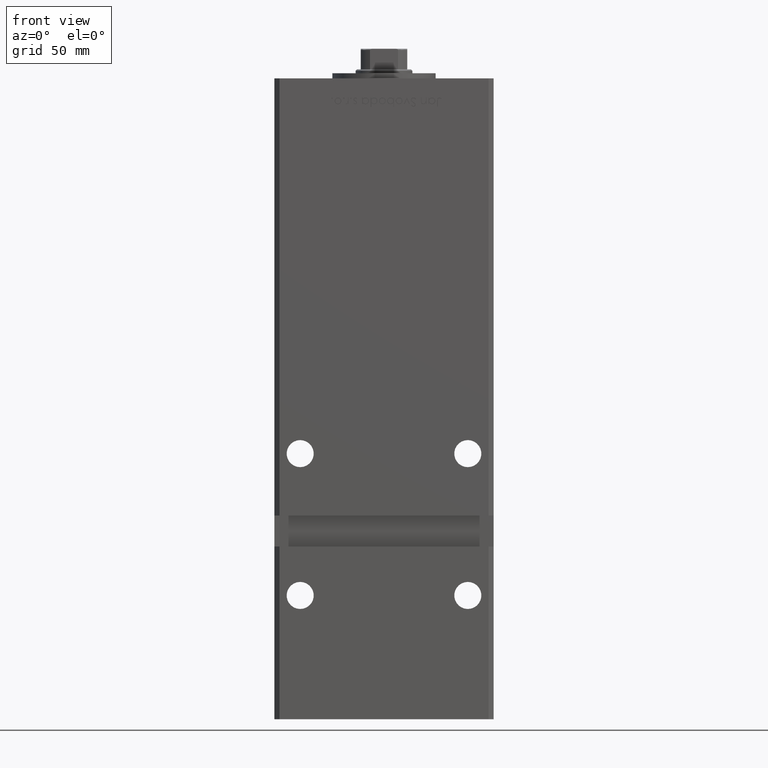
[diagram: clean part render]
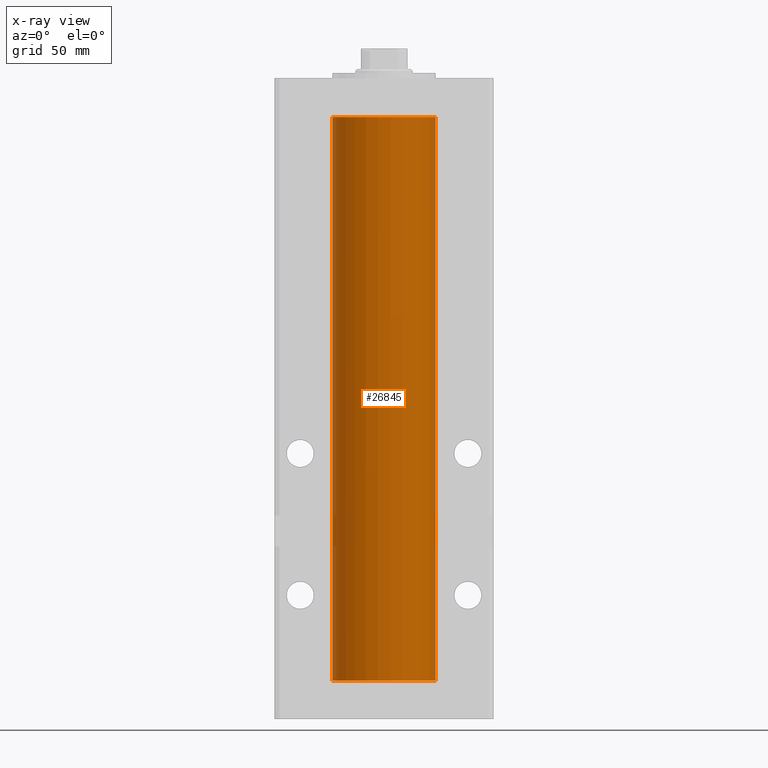
[diagram: x-ray — body ghosted, one internal face saturated and labeled with its STEP entity id]
A machine part, front view, then the same camera in x-ray: the body is ghosted and one INTERNAL B-rep face — a face not visible from any outside direction — is saturated and labeled: STEP entity #26845.
In plain terms, the highlighted cylindrical surface (partial cylindrical patch) has radius 20 mm, axis along (-0, -0, -1).
Its self-contained STEP definition (entity closure, byte-faithful):
#449 = DIRECTION ( 'NONE',  ( 1.000000000000000000, 0.000000000000000000, 0.000000000000000000 ) ) ;
#503 = EDGE_CURVE ( 'NONE', #45879, #2004, #27378, .T. ) ;
#872 = ORIENTED_EDGE ( 'NONE', *, *, #3127, .F. ) ;
#2004 = VERTEX_POINT ( 'NONE', #32864 ) ;
#3127 = EDGE_CURVE ( 'NONE', #2004, #22915, #32633, .T. ) ;
#5123 = CARTESIAN_POINT ( 'NONE',  ( 20.00000000000000000, 2.449293598294706513E-15, 218.5000000000000000 ) ) ;
#6564 = DIRECTION ( 'NONE',  ( -0.000000000000000000, -0.000000000000000000, -1.000000000000000000 ) ) ;
#7278 = EDGE_CURVE ( 'NONE', #45879, #41299, #48225, .T. ) ;
#8701 = FACE_OUTER_BOUND ( 'NONE', #12073, .T. ) ;
#11555 = ORIENTED_EDGE ( 'NONE', *, *, #503, .F. ) ;
#11908 = CARTESIAN_POINT ( 'NONE',  ( 20.00000000000000000, 2.449293598294706513E-15, 218.5000000000000000 ) ) ;
#12039 = DIRECTION ( 'NONE',  ( -0.000000000000000000, -0.000000000000000000, -1.000000000000000000 ) ) ;
#12073 = EDGE_LOOP ( 'NONE', ( #37978, #20402, #872, #11555 ) ) ;
#13063 = DIRECTION ( 'NONE',  ( -0.000000000000000000, 0.000000000000000000, 1.000000000000000000 ) ) ;
#13273 = CARTESIAN_POINT ( 'NONE',  ( 0.000000000000000000, 0.000000000000000000, 218.5000000000000000 ) ) ;
#14124 = DIRECTION ( 'NONE',  ( 1.000000000000000000, 0.000000000000000000, 0.000000000000000000 ) ) ;
#18380 = CARTESIAN_POINT ( 'NONE',  ( -20.00000000000000000, 0.000000000000000000, 218.5000000000000000 ) ) ;
#20402 = ORIENTED_EDGE ( 'NONE', *, *, #38440, .T. ) ;
#22915 = VERTEX_POINT ( 'NONE', #43774 ) ;
#23465 = AXIS2_PLACEMENT_3D ( 'NONE', #13273, #25107, #41523 ) ;
#24363 = CARTESIAN_POINT ( 'NONE',  ( 0.000000000000000000, 0.000000000000000000, 0.000000000000000000 ) ) ;
#25107 = DIRECTION ( 'NONE',  ( -0.000000000000000000, -0.000000000000000000, -1.000000000000000000 ) ) ;
#26845 = ADVANCED_FACE ( 'NONE', ( #8701 ), #45287, .F. ) ;
#27378 = LINE ( 'NONE', #52125, #47162 ) ;
#32289 = VECTOR ( 'NONE', #6564, 1000.000000000000000 ) ;
#32633 = CIRCLE ( 'NONE', #50656, 20.00000000000000000 ) ;
#32864 = CARTESIAN_POINT ( 'NONE',  ( -20.00000000000000000, 0.000000000000000000, 0.000000000000000000 ) ) ;
#37978 = ORIENTED_EDGE ( 'NONE', *, *, #7278, .T. ) ;
#38440 = EDGE_CURVE ( 'NONE', #41299, #22915, #52528, .T. ) ;
#41299 = VERTEX_POINT ( 'NONE', #5123 ) ;
#41523 = DIRECTION ( 'NONE',  ( -1.000000000000000000, 0.000000000000000000, 0.000000000000000000 ) ) ;
#43774 = CARTESIAN_POINT ( 'NONE',  ( 20.00000000000000000, 2.449293598294706513E-15, 0.000000000000000000 ) ) ;
#43968 = AXIS2_PLACEMENT_3D ( 'NONE', #51236, #50972, #14124 ) ;
#45287 = CYLINDRICAL_SURFACE ( 'NONE', #23465, 20.00000000000000000 ) ;
#45879 = VERTEX_POINT ( 'NONE', #18380 ) ;
#47162 = VECTOR ( 'NONE', #12039, 1000.000000000000000 ) ;
#48225 = CIRCLE ( 'NONE', #43968, 20.00000000000000000 ) ;
#50656 = AXIS2_PLACEMENT_3D ( 'NONE', #24363, #13063, #449 ) ;
#50972 = DIRECTION ( 'NONE',  ( -0.000000000000000000, 0.000000000000000000, 1.000000000000000000 ) ) ;
#51236 = CARTESIAN_POINT ( 'NONE',  ( 0.000000000000000000, 0.000000000000000000, 218.5000000000000000 ) ) ;
#52125 = CARTESIAN_POINT ( 'NONE',  ( -20.00000000000000000, 0.000000000000000000, 218.5000000000000000 ) ) ;
#52528 = LINE ( 'NONE', #11908, #32289 ) ;